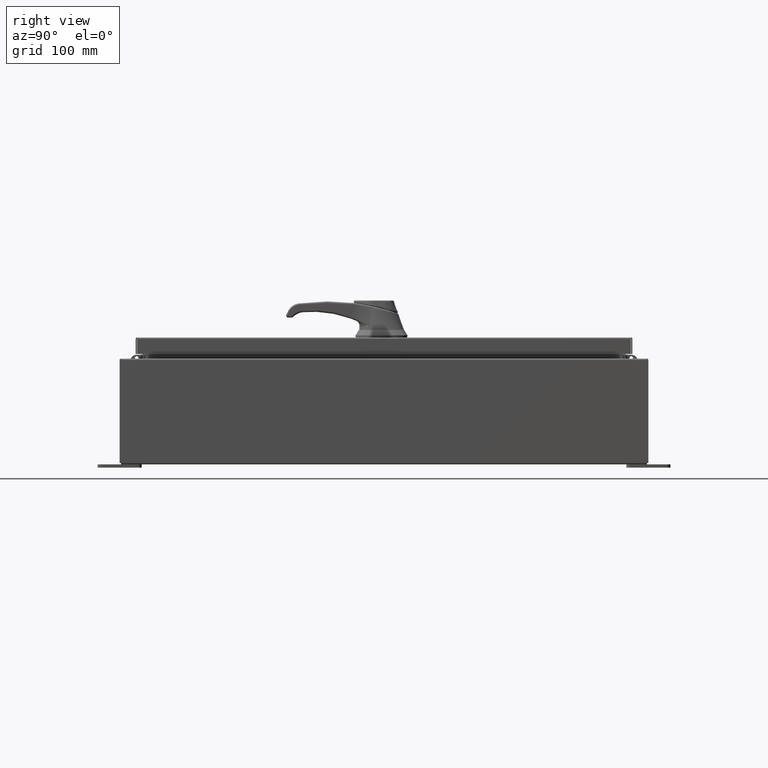
[diagram: clean part render]
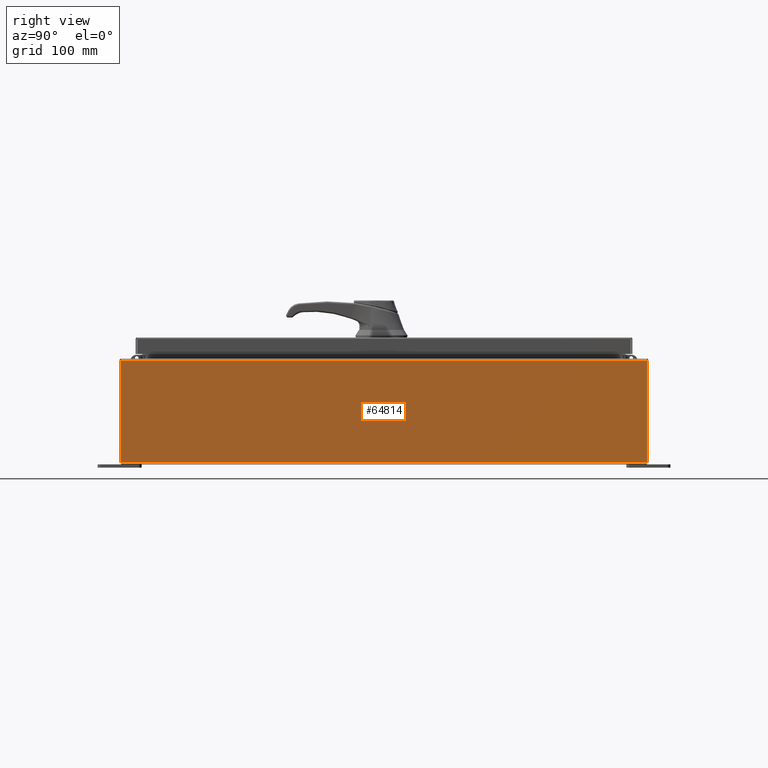
[diagram: same view with one face highlighted and labeled with its STEP entity id]
A machine part, right view. The second image highlights one B-rep face of the part: STEP entity #64814.
In plain terms, the highlighted planar face has unit normal (-1, 0, 0).
Its self-contained STEP definition (entity closure, byte-faithful):
#2974 = DIRECTION ( 'NONE',  ( -0.0000000000000000000, -1.000000000000000000, -0.0000000000000000000 ) ) ;
#3502 = EDGE_CURVE ( 'NONE', #114398, #54736, #85176, .T. ) ;
#7756 = LINE ( 'NONE', #29682, #32187 ) ;
#13650 = PLANE ( 'NONE',  #36814 ) ;
#17947 = CARTESIAN_POINT ( 'NONE',  ( 11.99999999999999600, -14.92530000000000000, 0.01299999999999986400 ) ) ;
#20444 = DIRECTION ( 'NONE',  ( 3.319545939341922800E-015, 0.0000000000000000000, 1.000000000000000000 ) ) ;
#21581 = ORIENTED_EDGE ( 'NONE', *, *, #99490, .T. ) ;
#22808 = LINE ( 'NONE', #17947, #117266 ) ;
#23234 = CARTESIAN_POINT ( 'NONE',  ( 11.99999999999999600, 0.0000000000000000000, -4.009536492811462900E-014 ) ) ;
#29682 = CARTESIAN_POINT ( 'NONE',  ( 11.99999999999999600, 14.92530000000000000, -4.009536492811462900E-014 ) ) ;
#32187 = VECTOR ( 'NONE', #20444, 39.37007874015748100 ) ;
#32503 = DIRECTION ( 'NONE',  ( 3.319545939341922000E-015, 0.0000000000000000000, 1.000000000000000000 ) ) ;
#36367 = VECTOR ( 'NONE', #72816, 39.37007874015748100 ) ;
#36504 = ORIENTED_EDGE ( 'NONE', *, *, #3502, .T. ) ;
#36814 = AXIS2_PLACEMENT_3D ( 'NONE', #23234, #87404, #32503 ) ;
#46629 = EDGE_CURVE ( 'NONE', #97310, #114398, #111167, .T. ) ;
#48847 = EDGE_LOOP ( 'NONE', ( #105199, #36504, #59622, #21581 ) ) ;
#51640 = FACE_OUTER_BOUND ( 'NONE', #48847, .T. ) ;
#54736 = VERTEX_POINT ( 'NONE', #67829 ) ;
#59622 = ORIENTED_EDGE ( 'NONE', *, *, #67902, .F. ) ;
#64812 = CARTESIAN_POINT ( 'NONE',  ( 11.99999999999999600, 14.92530000000000000, 0.01299999999999767800 ) ) ;
#64814 = ADVANCED_FACE ( 'NONE', ( #51640 ), #13650, .F. ) ;
#67829 = CARTESIAN_POINT ( 'NONE',  ( 11.99999999999999600, -14.92530000000000000, 0.01299999999999998900 ) ) ;
#67887 = VERTEX_POINT ( 'NONE', #64812 ) ;
#67902 = EDGE_CURVE ( 'NONE', #67887, #54736, #22808, .T. ) ;
#72816 = DIRECTION ( 'NONE',  ( -3.319545939341922800E-015, 0.0000000000000000000, -1.000000000000000000 ) ) ;
#81173 = VECTOR ( 'NONE', #2974, 39.37007874015748100 ) ;
#83926 = CARTESIAN_POINT ( 'NONE',  ( 12.00000000000001600, -14.92530000000000200, 5.837600000000001000 ) ) ;
#84116 = DIRECTION ( 'NONE',  ( 2.430368545829587400E-031, -1.000000000000000000, 7.321388497823866900E-017 ) ) ;
#85176 = LINE ( 'NONE', #95054, #36367 ) ;
#87404 = DIRECTION ( 'NONE',  ( -1.000000000000000000, 0.0000000000000000000, 3.319545939341922000E-015 ) ) ;
#90359 = CARTESIAN_POINT ( 'NONE',  ( 12.00000000000001600, 14.92530000000000200, 5.837600000000001000 ) ) ;
#95054 = CARTESIAN_POINT ( 'NONE',  ( 11.99999999999999600, -14.92530000000000000, -4.009536492811462900E-014 ) ) ;
#97310 = VERTEX_POINT ( 'NONE', #90359 ) ;
#99490 = EDGE_CURVE ( 'NONE', #67887, #97310, #7756, .T. ) ;
#105199 = ORIENTED_EDGE ( 'NONE', *, *, #46629, .T. ) ;
#111167 = LINE ( 'NONE', #112635, #81173 ) ;
#112635 = CARTESIAN_POINT ( 'NONE',  ( 12.00000000000001600, 14.92530000000000200, 5.837600000000001000 ) ) ;
#114398 = VERTEX_POINT ( 'NONE', #83926 ) ;
#117266 = VECTOR ( 'NONE', #84116, 39.37007874015748100 ) ;